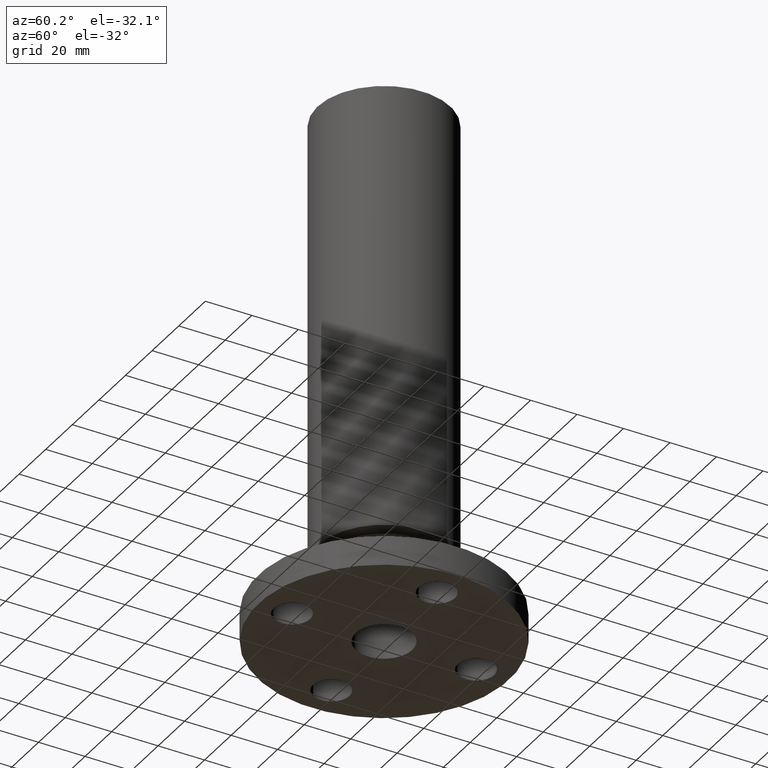
[diagram: clean part render]
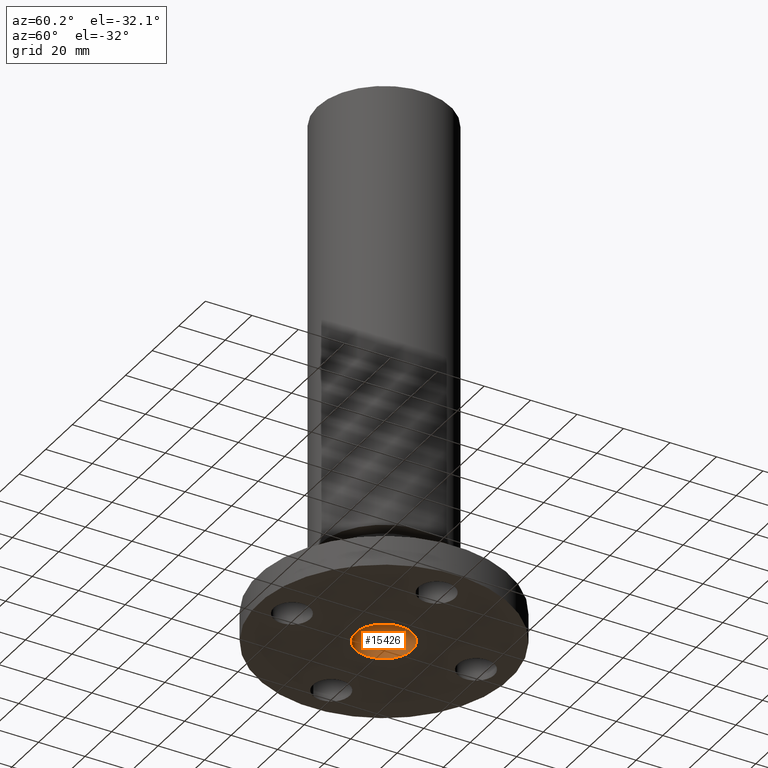
[diagram: same view with one face highlighted and labeled with its STEP entity id]
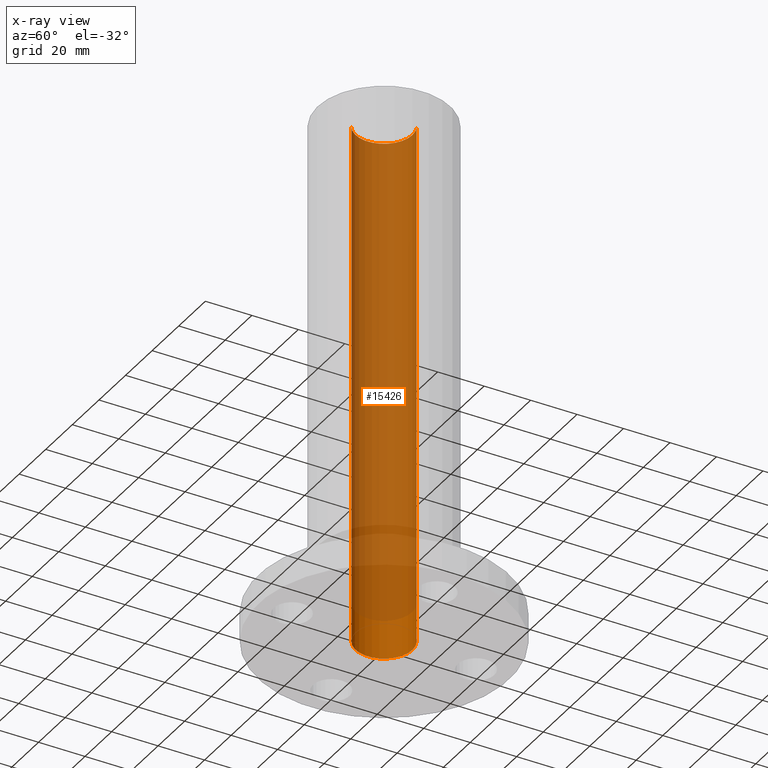
[diagram: x-ray of the same camera — body ghosted, the highlighted face saturated]
A machine part, auxiliary view. The second image highlights one B-rep face of the part: STEP entity #15426.
The next image is the same camera in x-ray: the body ghosted, the highlighted face saturated — about 93% of this face is hidden behind the body in this view.
In plain terms, the highlighted cylindrical surface (edge-blend (fillet) strip) has radius 12.192 mm, axis along (0, 0, -1).
Its self-contained STEP definition (entity closure, byte-faithful):
#14949=AXIS2_PLACEMENT_3D('Circle Axis2P3D',#14947,#14948,$) ;
#15387=AXIS2_PLACEMENT_3D('Cylinder Axis2P3D',#15384,#15385,#15386) ;
#15417=AXIS2_PLACEMENT_3D('Circle Axis2P3D',#15415,#15416,$) ;
#14947=CARTESIAN_POINT('Axis2P3D Location',(0.,0.,8.93750000004)) ;
#14951=CARTESIAN_POINT('Vertex',(-0.230124258531,-0.421239629709,8.93750000004)) ;
#14953=CARTESIAN_POINT('Vertex',(0.230124258531,0.421239629709,8.93750000004)) ;
#15384=CARTESIAN_POINT('Axis2P3D Location',(0.,0.,4.43750000002)) ;
#15393=CARTESIAN_POINT('Vertex',(-0.230124258531,-0.421239629709,0.)) ;
#15395=CARTESIAN_POINT('Vertex',(0.230124258531,0.421239629709,0.)) ;
#15398=CARTESIAN_POINT('Line Origine',(-0.230124258531,-0.421239629709,4.46875000002)) ;
#15403=CARTESIAN_POINT('Line Origine',(0.230124258531,0.421239629709,4.46875000002)) ;
#15415=CARTESIAN_POINT('Axis2P3D Location',(0.,0.,0.)) ;
#14948=DIRECTION('Axis2P3D Direction',(0.,0.,-0.0393700787402)) ;
#15385=DIRECTION('Axis2P3D Direction',(0.,0.,-0.0393700787402)) ;
#15386=DIRECTION('Axis2P3D XDirection',(-0.0188750212049,-0.0345504945626,0.)) ;
#15399=DIRECTION('Vector Direction',(0.,0.,-0.0393700787402)) ;
#15404=DIRECTION('Vector Direction',(0.,0.,-0.0393700787402)) ;
#15416=DIRECTION('Axis2P3D Direction',(0.,0.,-0.0393700787402)) ;
#15400=VECTOR('Line Direction',#15399,0.0393700787402) ;
#15405=VECTOR('Line Direction',#15404,0.0393700787402) ;
#15421=ORIENTED_EDGE('',*,*,#15419,.F.) ;
#15422=ORIENTED_EDGE('',*,*,#15407,.F.) ;
#15423=ORIENTED_EDGE('',*,*,#14955,.F.) ;
#15424=ORIENTED_EDGE('',*,*,#15402,.T.) ;
#15426=ADVANCED_FACE('PartBody',(#15425),#15388,.F.) ;
#14950=CIRCLE('generated circle',#14949,0.480000000002) ;
#15418=CIRCLE('generated circle',#15417,0.480000000002) ;
#15388=CYLINDRICAL_SURFACE('generated cylinder',#15387,0.480000000002) ;
#14955=EDGE_CURVE('',#14952,#14954,#14950,.T.) ;
#15402=EDGE_CURVE('',#14952,#15394,#15401,.T.) ;
#15407=EDGE_CURVE('',#14954,#15396,#15406,.T.) ;
#15419=EDGE_CURVE('',#15396,#15394,#15418,.F.) ;
#15420=EDGE_LOOP('',(#15421,#15422,#15423,#15424)) ;
#15425=FACE_OUTER_BOUND('',#15420,.T.) ;
#15401=LINE('Line',#15398,#15400) ;
#15406=LINE('Line',#15403,#15405) ;
#14952=VERTEX_POINT('',#14951) ;
#14954=VERTEX_POINT('',#14953) ;
#15394=VERTEX_POINT('',#15393) ;
#15396=VERTEX_POINT('',#15395) ;